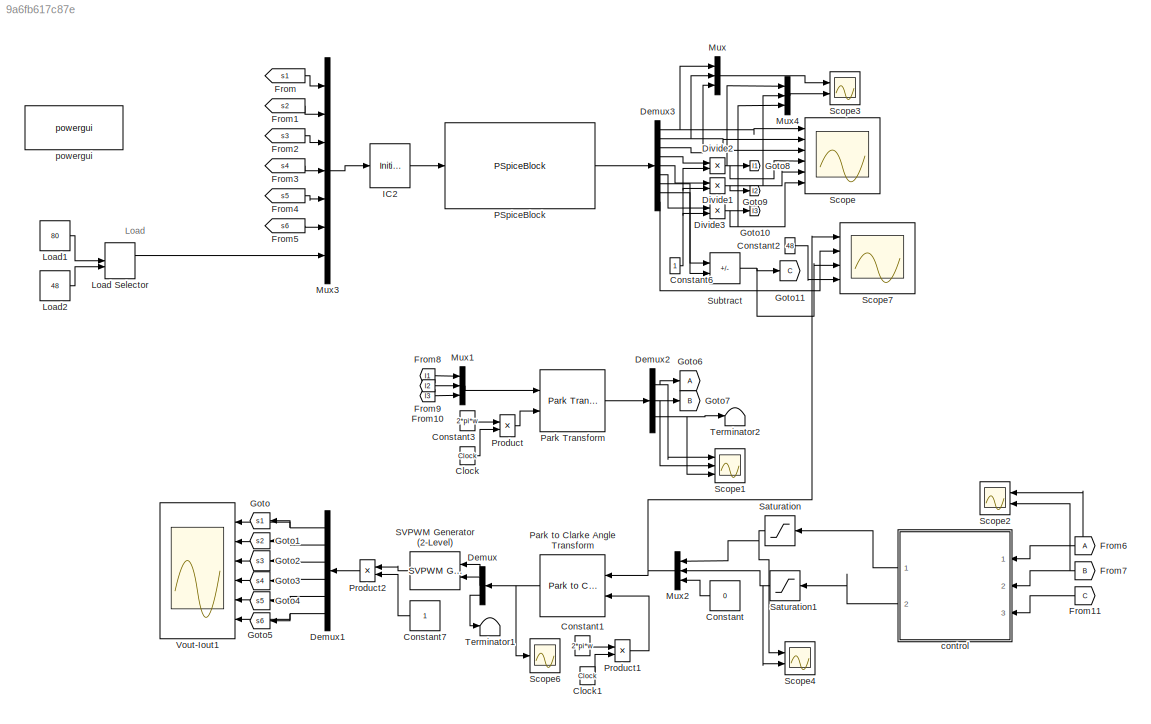
MODEL slx_9a6fb617c87e
KIND model
CONFIG AbsTol = auto
CONFIG EnableMultiTasking = off
CONFIG FixedStep = auto
CONFIG MaxStep = auto
CONFIG MinStep = auto
CONFIG RelTol = 1e-3
CONFIG SampleTimeConstraint = Unconstrained
CONFIG SolverName = VariableStepAuto
CONFIG StartTime = 0.0
CONFIG StopTime = 0.1
BLOCK [Clock] Clock
BLOCK [Clock] Clock1
BLOCK [Constant] Constant
  Value = 0
BLOCK [Constant] Constant1
  Value = 2*pi*w
BLOCK [Constant] Constant2
  Value = 48
BLOCK [Constant] Constant3
  Value = 2*pi*w
BLOCK [Constant] Constant6
BLOCK [Constant] Constant7
BLOCK [Demux] Demux
  Outputs = 3
  Ports = [1, 3]
BLOCK [Demux] Demux1
  Outputs = 6
  Ports = [1, 6]
BLOCK [Demux] Demux2
  Outputs = 3
  Ports = [1, 3]
BLOCK [Demux] Demux3
  Outputs = 9
  Ports = [1, 9]
BLOCK [Product] Divide1
  Inputs = */
  Ports = [2, 1]
BLOCK [Product] Divide2
  Inputs = */
  Ports = [2, 1]
BLOCK [Product] Divide3
  Inputs = */
  Ports = [2, 1]
BLOCK [From] From
  CloseFcn = tagdialog Close
  GotoTag = s1
BLOCK [From] From1
  CloseFcn = tagdialog Close
  GotoTag = s2
BLOCK [From] From10
  GotoTag = I3
BLOCK [From] From11
  GotoTag = C
BLOCK [From] From2
  CloseFcn = tagdialog Close
  GotoTag = s3
BLOCK [From] From3
  CloseFcn = tagdialog Close
  GotoTag = s4
BLOCK [From] From4
  CloseFcn = tagdialog Close
  GotoTag = s5
BLOCK [From] From5
  CloseFcn = tagdialog Close
  GotoTag = s6
BLOCK [From] From6
BLOCK [From] From7
  GotoTag = B
BLOCK [From] From8
  GotoTag = I1
BLOCK [From] From9
  GotoTag = I2
BLOCK [Goto] Goto
  GotoTag = s1
BLOCK [Goto] Goto1
  GotoTag = s2
BLOCK [Goto] Goto10
  GotoTag = I3
BLOCK [Goto] Goto11
  GotoTag = C
BLOCK [Goto] Goto2
  GotoTag = s3
BLOCK [Goto] Goto3
  GotoTag = s4
BLOCK [Goto] Goto4
  GotoTag = s5
BLOCK [Goto] Goto5
  GotoTag = s6
BLOCK [Goto] Goto6
BLOCK [Goto] Goto7
  GotoTag = B
BLOCK [Goto] Goto8
  GotoTag = I1
BLOCK [Goto] Goto9
  GotoTag = I2
BLOCK [InitialCondition] IC2
  Value = 0.1
BLOCK [ManualSwitch] Load Selector
  NameLocation = top
BLOCK [Constant] Load1
  Value = 80
BLOCK [Constant] Load2
  Value = 48
BLOCK [Mux] Mux
  DisplayOption = bar
  Inputs = 3
  Ports = [3, 1]
BLOCK [Mux] Mux1
  DisplayOption = bar
  Inputs = 3
  Ports = [3, 1]
BLOCK [Mux] Mux2
  DisplayOption = bar
  Inputs = 3
  Ports = [3, 1]
BLOCK [Mux] Mux3
  DisplayOption = bar
  Inputs = 7
  Ports = [7, 1]
BLOCK [Mux] Mux4
  DisplayOption = bar
  Inputs = 3
  Ports = [3, 1]
BLOCK [Reference] PSpiceBlock  REF=pspsim/PSpiceBlock
  Ports = [1, 1]
  SourceBlock = pspsim/PSpiceBlock
  SourceProductName = PSpice Block
BLOCK [Reference] Park Transform  REF=eeTransforms/Park Transform
  Ports = [2, 1]
  SourceBlock = eeTransforms/Park Transform
  SourceProductBaseCode = PS
  SourceType = Park Transform
BLOCK [Reference] Park to Clarke Angle Transform  REF=eeTransforms/Park to Clarke
Angle Transform
  Ports = [2, 1]
  SourceBlock = eeTransforms/Park to Clarke\nAngle Transform
  SourceProductBaseCode = PS
  SourceType = Park to Clarke Angle Transform
BLOCK [Product] Product
  Ports = [2, 1]
BLOCK [Product] Product1
  Ports = [2, 1]
BLOCK [Product] Product2
  Ports = [2, 1]
BLOCK [Reference] SVPWM Generator (2-Level)  REF=spsSVPWMGenerator2LevelLib/SVPWM Generator
(2-Level)
  Ports = [2, 1]
  SourceBlock = spsSVPWMGenerator2LevelLib/SVPWM Generator\n(2-Level)
  SourceProductBaseCode = PS
  SourceType = SVPWM Generator (2-Level)
BLOCK [Saturate] Saturation
  LowerLimit = -50
  NameLocation = top
  UpperLimit = 50
BLOCK [Saturate] Saturation1
  LowerLimit = -25
  NameLocation = top
  UpperLimit = 25
BLOCK [Scope] Scope
  Floating = off
  NumInputPorts = 6
  Ports = [6]
  ScopeSpecificationString = Simulink.scopes.TimeScopeBlockCfg('CurrentConfiguration', extmgr.ConfigurationSet(extmgr.Configuration('Core','General UI',true),extmgr.Configuration('Core','Source UI',true),extmgr.Configuration('Sources','WiredSimulink',true,'DataLoggingVariableName','ScopeData1'),extmgr.Configuration('Visuals','Time Domain',true,'SerializedDisplays',{struct('MinYLimReal','-0.0014','MaxYLimReal','0.00121','YLabe...<+1540ch>
BLOCK [Scope] Scope1
  Floating = off
  NumInputPorts = 3
  Ports = [3]
  ScopeSpecificationString = Simulink.scopes.TimeScopeBlockCfg('CurrentConfiguration', extmgr.ConfigurationSet(extmgr.Configuration('Core','General UI',true),extmgr.Configuration('Core','Source UI',true),extmgr.Configuration('Sources','WiredSimulink',true,'DataLogging',true,'DataLoggingSaveFormat','StructureWithTime','DataLoggingVariableName','ScopeData2'),extmgr.Configuration('Visuals','Time Domain',true,'SerializedDisplays'...<+1625ch>
BLOCK [Scope] Scope2
  Floating = off
  NumInputPorts = 2
  Ports = [2]
  ScopeSpecificationString = Simulink.scopes.TimeScopeBlockCfg('CurrentConfiguration', extmgr.ConfigurationSet(extmgr.Configuration('Core','General UI',true),extmgr.Configuration('Core','Source UI',true),extmgr.Configuration('Sources','WiredSimulink',true,'DataLoggingVariableName','pspiceclark','DataLogging',true,'DataLoggingSaveFormat','StructureWithTime'),extmgr.Configuration('Visuals','Time Domain',true,'SerializedDisplays...<+1554ch>
BLOCK [Scope] Scope3
  Floating = off
  NumInputPorts = 2
  Ports = [2]
  ScopeSpecificationString = Simulink.scopes.TimeScopeBlockCfg('CurrentConfiguration', extmgr.ConfigurationSet(extmgr.Configuration('Core','General UI',true),extmgr.Configuration('Core','Source UI',true),extmgr.Configuration('Sources','WiredSimulink',true,'DataLoggingVariableName','rectifierinput','DataLogging',true,'DataLoggingSaveFormat','StructureWithTime'),extmgr.Configuration('Visuals','Time Domain',true,'SerializedDispl...<+1384ch>
BLOCK [Scope] Scope4
  Floating = off
  NumInputPorts = 2
  Ports = [2]
  ScopeSpecificationString = Simulink.scopes.TimeScopeBlockCfg('CurrentConfiguration', extmgr.ConfigurationSet(extmgr.Configuration('Core','General UI',true),extmgr.Configuration('Core','Source UI',true),extmgr.Configuration('Sources','WiredSimulink',true,'DataLoggingVariableName','ScopeData5','DataLogging',true,'DataLoggingSaveFormat','StructureWithTime'),extmgr.Configuration('Visuals','Time Domain',true,'SerializedDisplays'...<+1526ch>
BLOCK [Scope] Scope6
  Floating = off
  NumInputPorts = 1
  Ports = [1]
  ScopeSpecificationString = Simulink.scopes.TimeScopeBlockCfg('CurrentConfiguration', extmgr.ConfigurationSet(extmgr.Configuration('Core','General UI',true),extmgr.Configuration('Core','Source UI',true),extmgr.Configuration('Sources','WiredSimulink',true,'DataLoggingVariableName','psab','DataLogging',true,'DataLoggingSaveFormat','StructureWithTime'),extmgr.Configuration('Visuals','Time Domain',true,'SerializedDisplays',{stru...<+1687ch>
BLOCK [Scope] Scope7
  Floating = off
  NumInputPorts = 4
  Ports = [4]
  ScopeSpecificationString = Simulink.scopes.TimeScopeBlockCfg('CurrentConfiguration', extmgr.ConfigurationSet(extmgr.Configuration('Core','General UI',true),extmgr.Configuration('Core','Source UI',true),extmgr.Configuration('Sources','WiredSimulink',true,'DataLoggingVariableName','pspiceoutput','DataLogging',true,'DataLoggingSaveFormat','StructureWithTime'),extmgr.Configuration('Visuals','Time Domain',true,'SerializedDisplay...<+2851ch>
BLOCK [Sum] Subtract
  IconShape = rectangular
  Inputs = +-
  Ports = [2, 1]
BLOCK [Terminator] Terminator1
BLOCK [Terminator] Terminator2
BLOCK [Scope] Vout-Iout1
  Floating = off
  NumInputPorts = 6
  Ports = [6]
  ScopeSpecificationString = Simulink.scopes.TimeScopeBlockCfg('CurrentConfiguration', extmgr.ConfigurationSet(extmgr.Configuration('Core','General UI',true),extmgr.Configuration('Core','Source UI',true),extmgr.Configuration('Sources','WiredSimulink',true,'DataLoggingSaveFormat','StructureWithTime','DataLoggingMaxPoints','5000000','SampleTime','2e-6','DataLoggingLimitDataPoints',true,'DataLoggingDecimation','1','DataLoggingDe...<+5133ch>
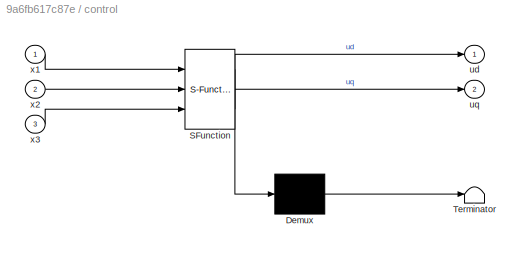
BLOCK [SubSystem] control
  ErrorFcn = Stateflow.Translate.translate
  PermitHierarchicalResolution = ExplicitOnly
  Ports = [3, 2]
  RequestExecContextInheritance = off
  SFBlockType = MATLAB Function
  TreatAsAtomicUnit = on
BLOCK [Demux] control/ Demux 
  Outputs = 1
  Ports = [1, 1]
BLOCK [S-Function] control/ SFunction 
  EnableBusSupport = off
  FunctionName = sf_sfun
  Parameters = C,E_m,L,R,Rl,epsilon,k2,k3,w,x2d,x3d
  PortCounts = [3 3]
  Ports = [3, 3]
  SFcnIsStateOwnerBlock = off
  SFunctionDeploymentMode = off
  Tag = Stateflow S-Function 1
BLOCK [Terminator] control/ Terminator 
BLOCK [Outport] control/ud
  VectorParamsAs1DForOutWhenUnconnected = off
BLOCK [Outport] control/uq
  Port = 2
  VectorParamsAs1DForOutWhenUnconnected = off
BLOCK [Inport] control/x1
BLOCK [Inport] control/x2
  Port = 2
BLOCK [Inport] control/x3
  Port = 3
BLOCK [Reference] powergui  REF=spspowerguiLib/powergui
  Ports = []
  Priority = 1
  SourceBlock = spspowerguiLib/powergui
  SourceProductBaseCode = PS
  SourceType = PSB option menu block
ANNOTATION (root): Load
LINE Clock1:1 -> Product1:2
LINE Clock:1 -> Product:2
LINE Constant1:1 -> Product1:1
LINE Constant2:1 -> Scope7:4
LINE Constant3:1 -> Product:1
NET Constant6:1 -> Divide1:2, Divide2:2, Divide3:2
LINE Constant7:1 -> Product2:2
LINE Constant:1 -> Mux2:3
NET Demux1:1 -> Goto:1, Vout-Iout1:1
NET Demux1:2 -> Goto1:1, Vout-Iout1:2
NET Demux1:3 -> Goto2:1, Vout-Iout1:3
NET Demux1:4 -> Goto3:1, Vout-Iout1:4
NET Demux1:5 -> Goto4:1, Vout-Iout1:5
NET Demux1:6 -> Goto5:1, Vout-Iout1:6
NET Demux2:1 -> Goto6:1, Scope1:1
NET Demux2:2 -> Goto7:1, Scope1:2
NET Demux2:3 -> Scope1:3, Terminator2:1
NET Demux3:1 -> Mux:1, Scope:1
NET Demux3:2 -> Mux:2, Scope:2
NET Demux3:3 -> Mux:3, Scope:3
LINE Demux3:4 -> Divide2:1
LINE Demux3:5 -> Divide1:1
LINE Demux3:6 -> Divide3:1
LINE Demux3:7 -> Subtract:1
LINE Demux3:8 -> Subtract:2
LINE Demux3:9 -> Scope7:2
LINE Demux:1 -> SVPWM Generator (2-Level):1
LINE Demux:2 -> SVPWM Generator (2-Level):2
LINE Demux:3 -> Terminator1:1
NET Divide1:1 -> Goto9:1, Mux4:2, Scope:5
NET Divide2:1 -> Goto8:1, Mux4:1, Scope:4
NET Divide3:1 -> Goto10:1, Mux4:3, Scope:6
LINE From10:1 -> Mux1:3
LINE From11:1 -> control:3
LINE From1:1 -> Mux3:2
LINE From2:1 -> Mux3:3
LINE From3:1 -> Mux3:4
LINE From4:1 -> Mux3:5
LINE From5:1 -> Mux3:6
NET From6:1 -> Scope2:1, control:1
NET From7:1 -> Scope2:2, control:2
LINE From8:1 -> Mux1:1
LINE From9:1 -> Mux1:2
LINE From:1 -> Mux3:1
LINE IC2:1 -> PSpiceBlock:1
LINE Load Selector:1 -> Mux3:7
LINE Load1:1 -> Load Selector:1
LINE Load2:1 -> Load Selector:2
LINE Mux1:1 -> Park Transform:1
NET Mux2:1 -> Park to Clarke Angle Transform:1, Scope7:1
LINE Mux3:1 -> IC2:1
LINE Mux4:1 -> Scope3:2
LINE Mux:1 -> Scope3:1
LINE PSpiceBlock:1 -> Demux3:1
LINE Park Transform:1 -> Demux2:1
NET Park to Clarke Angle Transform:1 -> Demux:1, Scope6:1
LINE Product1:1 -> Park to Clarke Angle Transform:2
LINE Product2:1 -> Demux1:1
LINE Product:1 -> Park Transform:2
LINE SVPWM Generator (2-Level):1 -> Product2:1
NET Saturation1:1 -> Mux2:2, Scope4:2
NET Saturation:1 -> Mux2:1, Scope4:1
NET Subtract:1 -> Goto11:1, Scope7:3
LINE control:1 -> Saturation:1
LINE control:2 -> Saturation1:1
note: NET lines group one-source signal fan-out (src -> all destinations, sorted); 1:1 wires keep LINE
CHART control states=1 transitions=1
  STATE_LABEL 'eML_blk_kernel()'
  STATE_LABEL 'SCRIPT:\nfunction [ud , uq] = fcn(x1, x2, x3, E_m, C, L, w, R, x3d, x2d, k3, k2, epsilon, Rl)\n\n\nx1d_1 = (E_m/(2*R)) + (sqrt((E_m)^2 - (8*R*x3d^2)/(3*Rl)))/(2*R);\nx1d_2 = (E_m/(2*R)) - (sqrt((E_m)^2 - (8*R*x3d^2)/(3*Rl)))/(2*R);\nx1d = x1d_2;\n\n%errors\ne1 = x1 - x1d;      e2 = x2 - x2d;      e3 = x3 - x3d;  \n\n%controls\n%para evitar singularidades agregamos el termino epsilon donde corresponda\nuq = (2*...<+212ch>'
CHART  states=0 transitions=0
